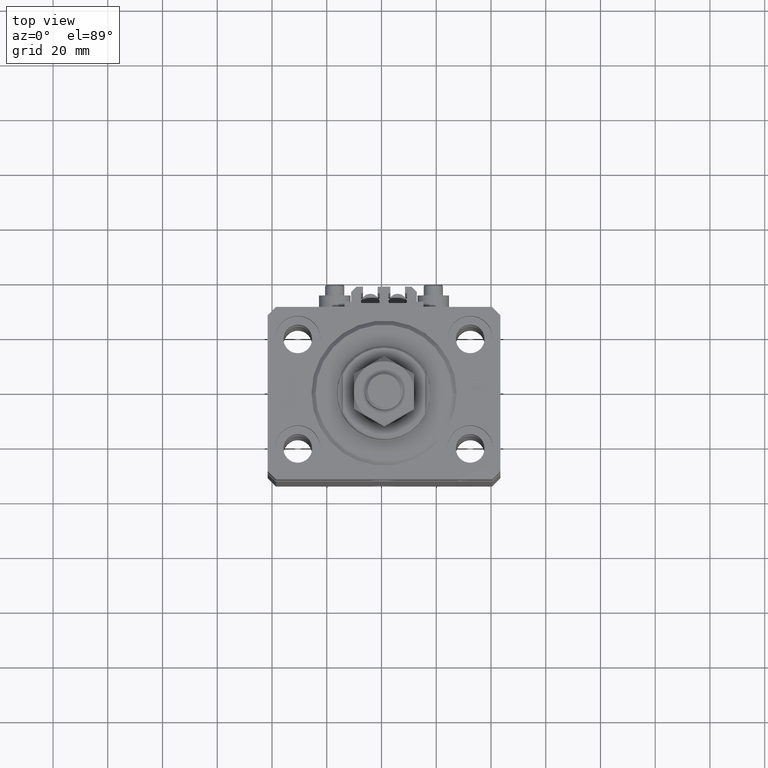
[diagram: clean part render]
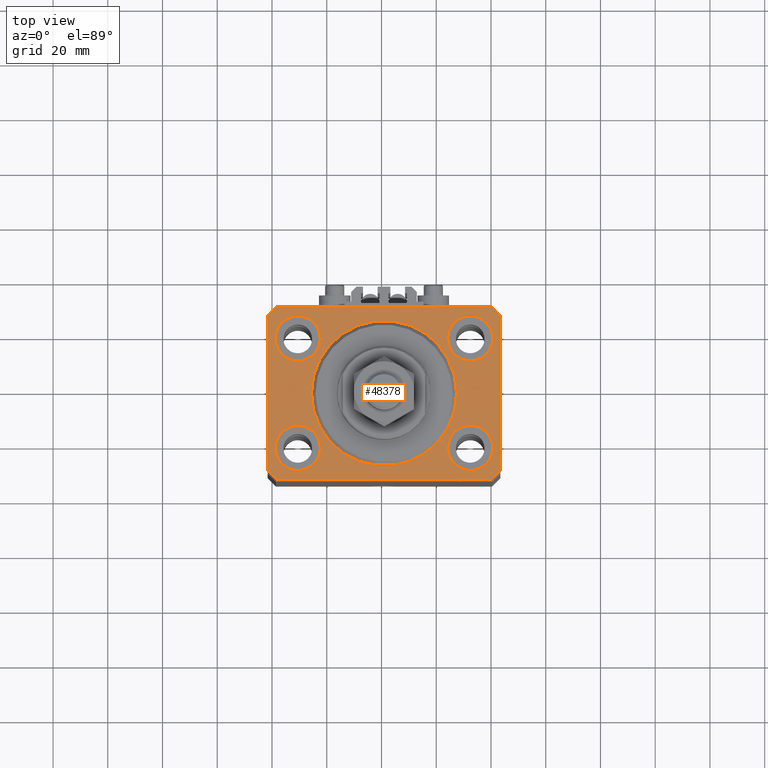
[diagram: same view with one face highlighted and labeled with its STEP entity id]
A machine part, top view. The second image highlights one B-rep face of the part: STEP entity #48378.
In plain terms, the highlighted planar face has unit normal (0, 0, 1).
Its self-contained STEP definition (entity closure, byte-faithful):
#178 = EDGE_CURVE ( 'NONE', #16747, #4982, #38635, .T. ) ;
#406 = FACE_BOUND ( 'NONE', #46662, .T. ) ;
#1834 = CARTESIAN_POINT ( 'NONE',  ( -39.75000000000000000, -20.00000000000000000, 0.000000000000000000 ) ) ;
#2613 = ORIENTED_EDGE ( 'NONE', *, *, #37112, .T. ) ;
#3023 = AXIS2_PLACEMENT_3D ( 'NONE', #45046, #11311, #41720 ) ;
#3137 = CARTESIAN_POINT ( 'NONE',  ( -42.50000000000000000, 28.50000000000000000, 0.000000000000000000 ) ) ;
#3494 = EDGE_CURVE ( 'NONE', #27509, #31881, #19191, .T. ) ;
#3672 = EDGE_CURVE ( 'NONE', #48801, #13771, #31448, .T. ) ;
#3967 = EDGE_CURVE ( 'NONE', #4982, #16747, #29008, .T. ) ;
#3980 = FACE_BOUND ( 'NONE', #45082, .T. ) ;
#4658 = EDGE_CURVE ( 'NONE', #34139, #26942, #15182, .T. ) ;
#4982 = VERTEX_POINT ( 'NONE', #30584 ) ;
#5508 = EDGE_CURVE ( 'NONE', #13600, #46600, #41648, .T. ) ;
#5680 = VERTEX_POINT ( 'NONE', #27020 ) ;
#6003 = CARTESIAN_POINT ( 'NONE',  ( 42.50000000000051870, 28.49999999999995381, 0.000000000000000000 ) ) ;
#6093 = CARTESIAN_POINT ( 'NONE',  ( -31.50000000000000000, -20.00000000000000000, 0.000000000000000000 ) ) ;
#6643 = DIRECTION ( 'NONE',  ( 1.000000000000000000, 0.000000000000000000, 0.000000000000000000 ) ) ;
#6966 = AXIS2_PLACEMENT_3D ( 'NONE', #47968, #12717, #20384 ) ;
#6984 = DIRECTION ( 'NONE',  ( -0.7071067811865471286, -0.7071067811865479058, 0.000000000000000000 ) ) ;
#7112 = DIRECTION ( 'NONE',  ( 1.000000000000000000, 0.000000000000000000, 0.000000000000000000 ) ) ;
#7160 = CARTESIAN_POINT ( 'NONE',  ( -39.50000000000000711, -31.50000000000000000, 0.000000000000000000 ) ) ;
#7176 = EDGE_CURVE ( 'NONE', #5680, #27509, #49654, .T. ) ;
#7244 = CARTESIAN_POINT ( 'NONE',  ( -39.50000000000000711, 31.50000000000000000, 0.000000000000000000 ) ) ;
#7469 = DIRECTION ( 'NONE',  ( 0.000000000000000000, 0.000000000000000000, 1.000000000000000000 ) ) ;
#7941 = ORIENTED_EDGE ( 'NONE', *, *, #3672, .F. ) ;
#8438 = CARTESIAN_POINT ( 'NONE',  ( -42.50000000000000000, 28.50000000000000000, 0.000000000000000000 ) ) ;
#9146 = CARTESIAN_POINT ( 'NONE',  ( 23.25000000000000355, 20.00000000000001066, 0.000000000000000000 ) ) ;
#9381 = EDGE_CURVE ( 'NONE', #34712, #28568, #20220, .T. ) ;
#9932 = DIRECTION ( 'NONE',  ( 1.000000000000000000, 0.000000000000000000, 0.000000000000000000 ) ) ;
#10193 = DIRECTION ( 'NONE',  ( -0.7071067811865356934, 0.7071067811865594521, 0.000000000000000000 ) ) ;
#11108 = DIRECTION ( 'NONE',  ( 8.886653596232072440E-15, 1.000000000000000000, 0.000000000000000000 ) ) ;
#11311 = DIRECTION ( 'NONE',  ( 0.000000000000000000, 0.000000000000000000, 1.000000000000000000 ) ) ;
#11698 = CARTESIAN_POINT ( 'NONE',  ( 42.50000000000000711, -28.50000000000000355, 0.000000000000000000 ) ) ;
#12033 = DIRECTION ( 'NONE',  ( 0.000000000000000000, -1.000000000000000000, 0.000000000000000000 ) ) ;
#12630 = LINE ( 'NONE', #28212, #47345 ) ;
#12717 = DIRECTION ( 'NONE',  ( 0.000000000000000000, 0.000000000000000000, 1.000000000000000000 ) ) ;
#12782 = CARTESIAN_POINT ( 'NONE',  ( 0.000000000000000000, 0.000000000000000000, 0.000000000000000000 ) ) ;
#12924 = ORIENTED_EDGE ( 'NONE', *, *, #17215, .T. ) ;
#13026 = AXIS2_PLACEMENT_3D ( 'NONE', #38531, #19621, #46947 ) ;
#13062 = VECTOR ( 'NONE', #11108, 1000.000000000000000 ) ;
#13600 = VERTEX_POINT ( 'NONE', #40715 ) ;
#13753 = EDGE_CURVE ( 'NONE', #28568, #34712, #30883, .T. ) ;
#13771 = VERTEX_POINT ( 'NONE', #42474 ) ;
#13894 = CARTESIAN_POINT ( 'NONE',  ( 39.50000000000000711, -31.50000000000000000, 0.000000000000000000 ) ) ;
#14697 = ORIENTED_EDGE ( 'NONE', *, *, #20170, .F. ) ;
#14939 = EDGE_LOOP ( 'NONE', ( #22340, #28125 ) ) ;
#15182 = CIRCLE ( 'NONE', #45324, 8.250000000000000000 ) ;
#15306 = ORIENTED_EDGE ( 'NONE', *, *, #13753, .F. ) ;
#15394 = EDGE_CURVE ( 'NONE', #44213, #35760, #45612, .T. ) ;
#16606 = AXIS2_PLACEMENT_3D ( 'NONE', #12782, #36526, #28364 ) ;
#16747 = VERTEX_POINT ( 'NONE', #47547 ) ;
#17215 = EDGE_CURVE ( 'NONE', #43324, #44822, #45093, .T. ) ;
#17329 = CARTESIAN_POINT ( 'NONE',  ( 31.50000000000000000, -20.00000000000000000, 0.000000000000000000 ) ) ;
#19191 = LINE ( 'NONE', #8438, #33089 ) ;
#19338 = CIRCLE ( 'NONE', #3023, 8.250000000000000000 ) ;
#19567 = FACE_BOUND ( 'NONE', #14939, .T. ) ;
#19621 = DIRECTION ( 'NONE',  ( 0.000000000000000000, 0.000000000000000000, 1.000000000000000000 ) ) ;
#20011 = DIRECTION ( 'NONE',  ( 0.000000000000000000, 0.000000000000000000, 1.000000000000000000 ) ) ;
#20065 = DIRECTION ( 'NONE',  ( 0.000000000000000000, 0.000000000000000000, 1.000000000000000000 ) ) ;
#20170 = EDGE_CURVE ( 'NONE', #13771, #48801, #28641, .T. ) ;
#20202 = CARTESIAN_POINT ( 'NONE',  ( 39.50000000000056843, 31.50000000000000000, 0.000000000000000000 ) ) ;
#20220 = CIRCLE ( 'NONE', #39719, 8.250000000000000000 ) ;
#20384 = DIRECTION ( 'NONE',  ( 1.000000000000000000, 0.000000000000000000, 0.000000000000000000 ) ) ;
#20448 = DIRECTION ( 'NONE',  ( 0.000000000000000000, 0.000000000000000000, 1.000000000000000000 ) ) ;
#20819 = ORIENTED_EDGE ( 'NONE', *, *, #178, .F. ) ;
#21164 = DIRECTION ( 'NONE',  ( 0.000000000000000000, 0.000000000000000000, 1.000000000000000000 ) ) ;
#21459 = DIRECTION ( 'NONE',  ( 0.000000000000000000, 0.000000000000000000, 1.000000000000000000 ) ) ;
#22340 = ORIENTED_EDGE ( 'NONE', *, *, #15394, .F. ) ;
#22664 = VERTEX_POINT ( 'NONE', #49216 ) ;
#23305 = EDGE_LOOP ( 'NONE', ( #48111, #20819 ) ) ;
#25770 = DIRECTION ( 'NONE',  ( 0.000000000000000000, 0.000000000000000000, 1.000000000000000000 ) ) ;
#26288 = CARTESIAN_POINT ( 'NONE',  ( 39.74999999999999289, 20.00000000000001066, 0.000000000000000000 ) ) ;
#26942 = VERTEX_POINT ( 'NONE', #27190 ) ;
#27020 = CARTESIAN_POINT ( 'NONE',  ( -39.50000000000000711, 31.50000000000000000, 0.000000000000000000 ) ) ;
#27190 = CARTESIAN_POINT ( 'NONE',  ( -23.25000000000000000, 20.00000000000000000, 0.000000000000000000 ) ) ;
#27509 = VERTEX_POINT ( 'NONE', #3137 ) ;
#27651 = DIRECTION ( 'NONE',  ( 1.000000000000000000, 0.000000000000000000, 0.000000000000000000 ) ) ;
#27736 = PLANE ( 'NONE',  #41688 ) ;
#27809 = AXIS2_PLACEMENT_3D ( 'NONE', #17329, #21164, #49242 ) ;
#28125 = ORIENTED_EDGE ( 'NONE', *, *, #39884, .F. ) ;
#28212 = CARTESIAN_POINT ( 'NONE',  ( 39.50000000000000711, -31.50000000000000000, 0.000000000000000000 ) ) ;
#28298 = AXIS2_PLACEMENT_3D ( 'NONE', #47093, #20011, #35589 ) ;
#28364 = DIRECTION ( 'NONE',  ( 1.000000000000000000, 0.000000000000000000, 0.000000000000000000 ) ) ;
#28368 = LINE ( 'NONE', #20202, #31144 ) ;
#28426 = CARTESIAN_POINT ( 'NONE',  ( 23.25000000000000355, -20.00000000000000000, 0.000000000000000000 ) ) ;
#28568 = VERTEX_POINT ( 'NONE', #1834 ) ;
#28641 = CIRCLE ( 'NONE', #27809, 8.249999999999992895 ) ;
#29008 = CIRCLE ( 'NONE', #6966, 26.50000000000000355 ) ;
#29259 = ORIENTED_EDGE ( 'NONE', *, *, #45643, .T. ) ;
#30259 = EDGE_LOOP ( 'NONE', ( #39589, #35536, #40614, #2613, #33586, #29259, #12924, #30758 ) ) ;
#30523 = CARTESIAN_POINT ( 'NONE',  ( 42.50000000000000711, -28.50000000000000355, 0.000000000000000000 ) ) ;
#30584 = CARTESIAN_POINT ( 'NONE',  ( 26.50000000000000355, 0.000000000000000000, 0.000000000000000000 ) ) ;
#30632 = VECTOR ( 'NONE', #10193, 1000.000000000000114 ) ;
#30758 = ORIENTED_EDGE ( 'NONE', *, *, #33657, .T. ) ;
#30780 = VECTOR ( 'NONE', #6984, 1000.000000000000000 ) ;
#30883 = CIRCLE ( 'NONE', #47996, 8.250000000000000000 ) ;
#31144 = VECTOR ( 'NONE', #43198, 1000.000000000000000 ) ;
#31448 = CIRCLE ( 'NONE', #38776, 8.249999999999992895 ) ;
#31570 = FACE_BOUND ( 'NONE', #23305, .T. ) ;
#31819 = CARTESIAN_POINT ( 'NONE',  ( 0.000000000000000000, 0.000000000000000000, 0.000000000000000000 ) ) ;
#31881 = VERTEX_POINT ( 'NONE', #36348 ) ;
#32356 = VECTOR ( 'NONE', #6643, 1000.000000000000000 ) ;
#32455 = DIRECTION ( 'NONE',  ( 1.000000000000000000, 0.000000000000000000, 0.000000000000000000 ) ) ;
#33089 = VECTOR ( 'NONE', #12033, 1000.000000000000000 ) ;
#33213 = LINE ( 'NONE', #49038, #30632 ) ;
#33586 = ORIENTED_EDGE ( 'NONE', *, *, #5508, .T. ) ;
#33657 = EDGE_CURVE ( 'NONE', #44822, #22664, #33213, .T. ) ;
#34139 = VERTEX_POINT ( 'NONE', #36975 ) ;
#34220 = CARTESIAN_POINT ( 'NONE',  ( -23.25000000000000000, -20.00000000000000000, 0.000000000000000000 ) ) ;
#34309 = LINE ( 'NONE', #37881, #35663 ) ;
#34335 = CARTESIAN_POINT ( 'NONE',  ( -31.50000000000000000, 20.00000000000000000, 0.000000000000000000 ) ) ;
#34712 = VERTEX_POINT ( 'NONE', #34220 ) ;
#34804 = CARTESIAN_POINT ( 'NONE',  ( -31.50000000000000000, -20.00000000000000000, 0.000000000000000000 ) ) ;
#35396 = FACE_BOUND ( 'NONE', #35788, .T. ) ;
#35536 = ORIENTED_EDGE ( 'NONE', *, *, #7176, .T. ) ;
#35589 = DIRECTION ( 'NONE',  ( 1.000000000000000000, 0.000000000000000000, 0.000000000000000000 ) ) ;
#35646 = DIRECTION ( 'NONE',  ( 1.000000000000000000, 0.000000000000000000, -0.000000000000000000 ) ) ;
#35663 = VECTOR ( 'NONE', #37626, 1000.000000000000000 ) ;
#35760 = VERTEX_POINT ( 'NONE', #9146 ) ;
#35788 = EDGE_LOOP ( 'NONE', ( #14697, #7941 ) ) ;
#36348 = CARTESIAN_POINT ( 'NONE',  ( -42.50000000000000000, -28.50000000000000000, 0.000000000000000000 ) ) ;
#36458 = CIRCLE ( 'NONE', #28298, 8.249999999999992895 ) ;
#36526 = DIRECTION ( 'NONE',  ( 0.000000000000000000, 0.000000000000000000, 1.000000000000000000 ) ) ;
#36975 = CARTESIAN_POINT ( 'NONE',  ( -39.75000000000000000, 20.00000000000000000, 0.000000000000000000 ) ) ;
#37075 = EDGE_CURVE ( 'NONE', #26942, #34139, #19338, .T. ) ;
#37112 = EDGE_CURVE ( 'NONE', #31881, #13600, #34309, .T. ) ;
#37626 = DIRECTION ( 'NONE',  ( 0.7071067811865471286, -0.7071067811865479058, 0.000000000000000000 ) ) ;
#37881 = CARTESIAN_POINT ( 'NONE',  ( -42.50000000000000000, -28.50000000000000000, 0.000000000000000000 ) ) ;
#38531 = CARTESIAN_POINT ( 'NONE',  ( 31.50000000000000000, 20.00000000000001066, 0.000000000000000000 ) ) ;
#38635 = CIRCLE ( 'NONE', #16606, 26.50000000000000355 ) ;
#38776 = AXIS2_PLACEMENT_3D ( 'NONE', #44945, #20448, #9932 ) ;
#39589 = ORIENTED_EDGE ( 'NONE', *, *, #49121, .T. ) ;
#39719 = AXIS2_PLACEMENT_3D ( 'NONE', #6093, #25770, #7112 ) ;
#39884 = EDGE_CURVE ( 'NONE', #35760, #44213, #36458, .T. ) ;
#40614 = ORIENTED_EDGE ( 'NONE', *, *, #3494, .T. ) ;
#40715 = CARTESIAN_POINT ( 'NONE',  ( -39.50000000000000711, -31.50000000000000000, 0.000000000000000000 ) ) ;
#41500 = ORIENTED_EDGE ( 'NONE', *, *, #37075, .F. ) ;
#41648 = LINE ( 'NONE', #7160, #32356 ) ;
#41688 = AXIS2_PLACEMENT_3D ( 'NONE', #31819, #20065, #35646 ) ;
#41720 = DIRECTION ( 'NONE',  ( 1.000000000000000000, 0.000000000000000000, 0.000000000000000000 ) ) ;
#42474 = CARTESIAN_POINT ( 'NONE',  ( 39.74999999999999289, -20.00000000000000000, 0.000000000000000000 ) ) ;
#43198 = DIRECTION ( 'NONE',  ( -1.000000000000000000, 0.000000000000000000, 0.000000000000000000 ) ) ;
#43324 = VERTEX_POINT ( 'NONE', #11698 ) ;
#43792 = DIRECTION ( 'NONE',  ( 0.7071067811865483499, 0.7071067811865466846, 0.000000000000000000 ) ) ;
#44213 = VERTEX_POINT ( 'NONE', #26288 ) ;
#44822 = VERTEX_POINT ( 'NONE', #6003 ) ;
#44945 = CARTESIAN_POINT ( 'NONE',  ( 31.50000000000000000, -20.00000000000000000, 0.000000000000000000 ) ) ;
#45046 = CARTESIAN_POINT ( 'NONE',  ( -31.50000000000000000, 20.00000000000000000, 0.000000000000000000 ) ) ;
#45082 = EDGE_LOOP ( 'NONE', ( #47116, #15306 ) ) ;
#45093 = LINE ( 'NONE', #30523, #13062 ) ;
#45324 = AXIS2_PLACEMENT_3D ( 'NONE', #34335, #21459, #32455 ) ;
#45612 = CIRCLE ( 'NONE', #13026, 8.249999999999992895 ) ;
#45643 = EDGE_CURVE ( 'NONE', #46600, #43324, #12630, .T. ) ;
#46600 = VERTEX_POINT ( 'NONE', #13894 ) ;
#46662 = EDGE_LOOP ( 'NONE', ( #41500, #48044 ) ) ;
#46947 = DIRECTION ( 'NONE',  ( 1.000000000000000000, 0.000000000000000000, 0.000000000000000000 ) ) ;
#47093 = CARTESIAN_POINT ( 'NONE',  ( 31.50000000000000000, 20.00000000000001066, 0.000000000000000000 ) ) ;
#47116 = ORIENTED_EDGE ( 'NONE', *, *, #9381, .F. ) ;
#47149 = FACE_OUTER_BOUND ( 'NONE', #30259, .T. ) ;
#47345 = VECTOR ( 'NONE', #43792, 1000.000000000000000 ) ;
#47547 = CARTESIAN_POINT ( 'NONE',  ( -26.50000000000000355, 3.245314017740485765E-15, 0.000000000000000000 ) ) ;
#47968 = CARTESIAN_POINT ( 'NONE',  ( 0.000000000000000000, 0.000000000000000000, 0.000000000000000000 ) ) ;
#47996 = AXIS2_PLACEMENT_3D ( 'NONE', #34804, #7469, #27651 ) ;
#48044 = ORIENTED_EDGE ( 'NONE', *, *, #4658, .F. ) ;
#48111 = ORIENTED_EDGE ( 'NONE', *, *, #3967, .F. ) ;
#48378 = ADVANCED_FACE ( 'NONE', ( #3980, #35396, #19567, #406, #31570, #47149 ), #27736, .T. ) ;
#48801 = VERTEX_POINT ( 'NONE', #28426 ) ;
#49038 = CARTESIAN_POINT ( 'NONE',  ( 42.50000000000051870, 28.49999999999995381, 0.000000000000000000 ) ) ;
#49121 = EDGE_CURVE ( 'NONE', #22664, #5680, #28368, .T. ) ;
#49216 = CARTESIAN_POINT ( 'NONE',  ( 39.50000000000056843, 31.50000000000000000, 0.000000000000000000 ) ) ;
#49242 = DIRECTION ( 'NONE',  ( 1.000000000000000000, 0.000000000000000000, 0.000000000000000000 ) ) ;
#49654 = LINE ( 'NONE', #7244, #30780 ) ;